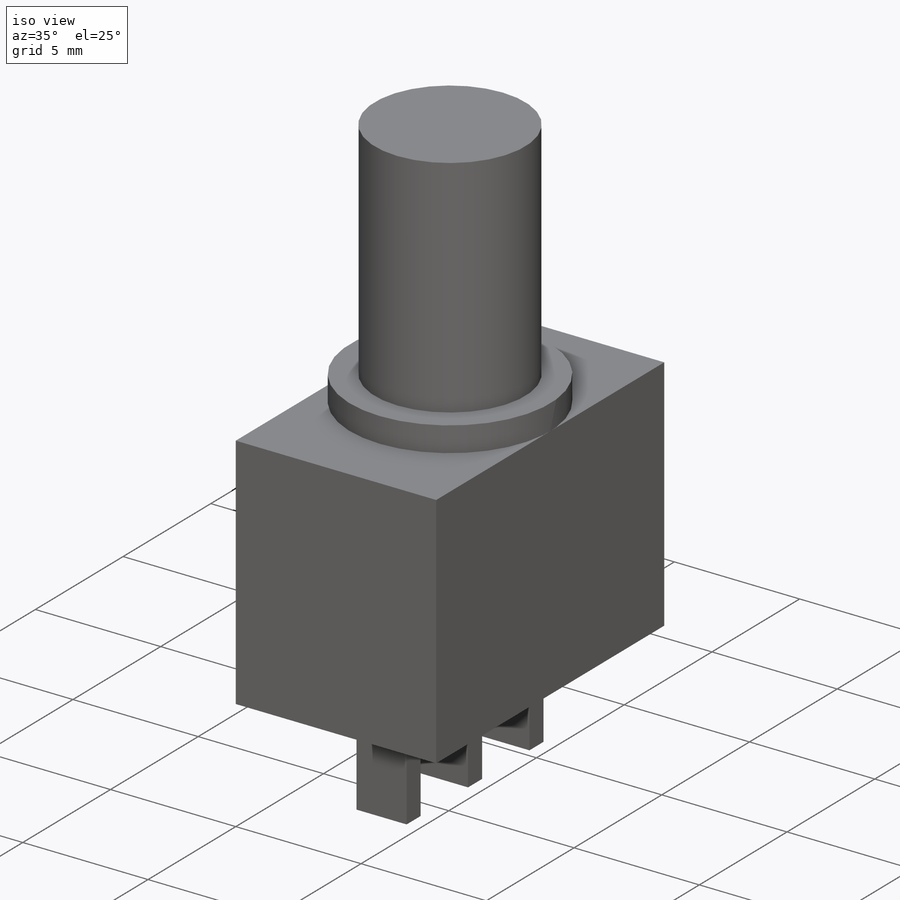
[diagram: iso view]
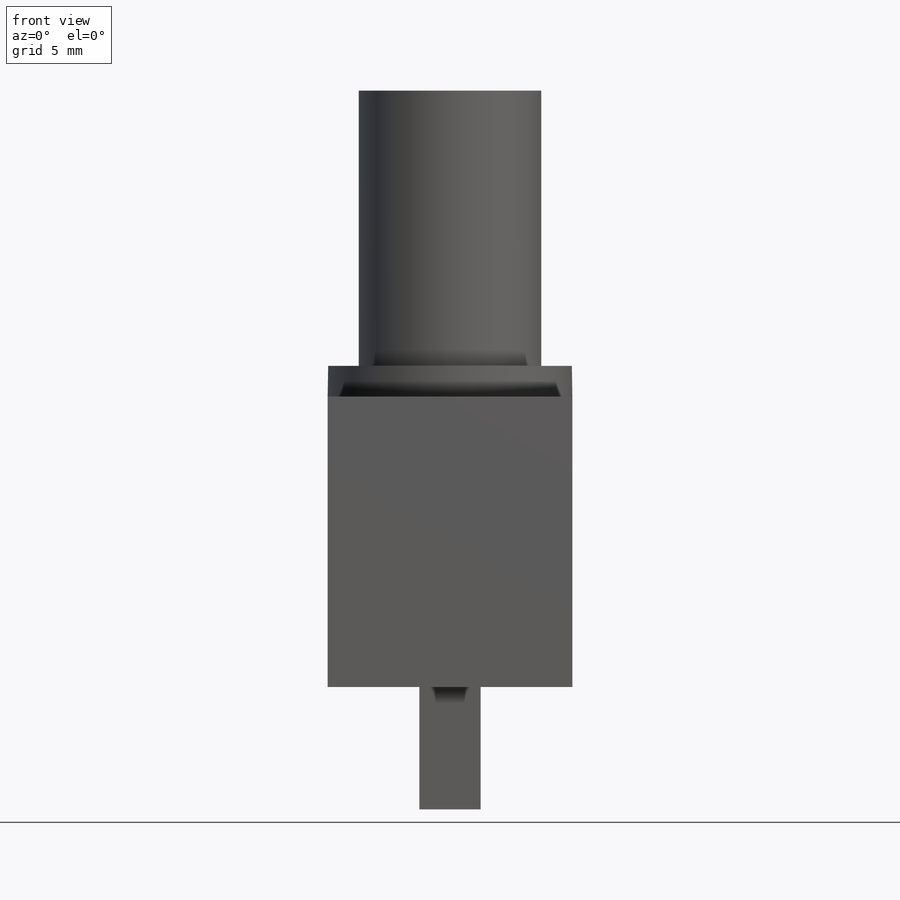
[diagram: front view]
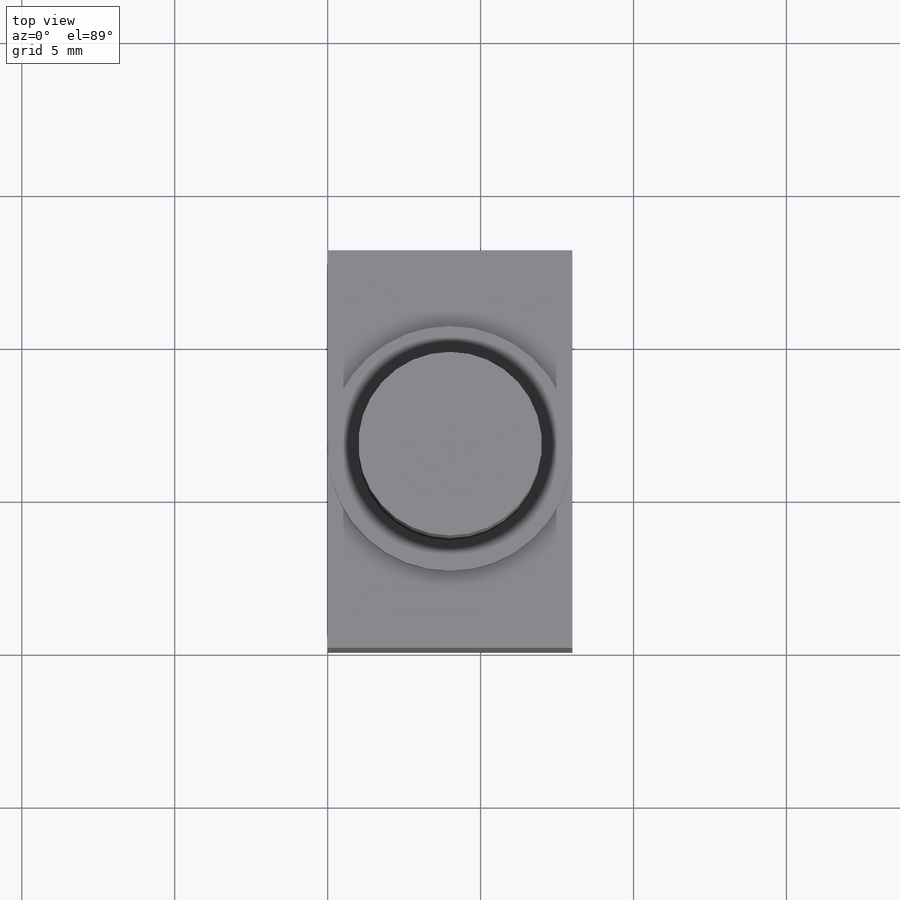
[diagram: top view]
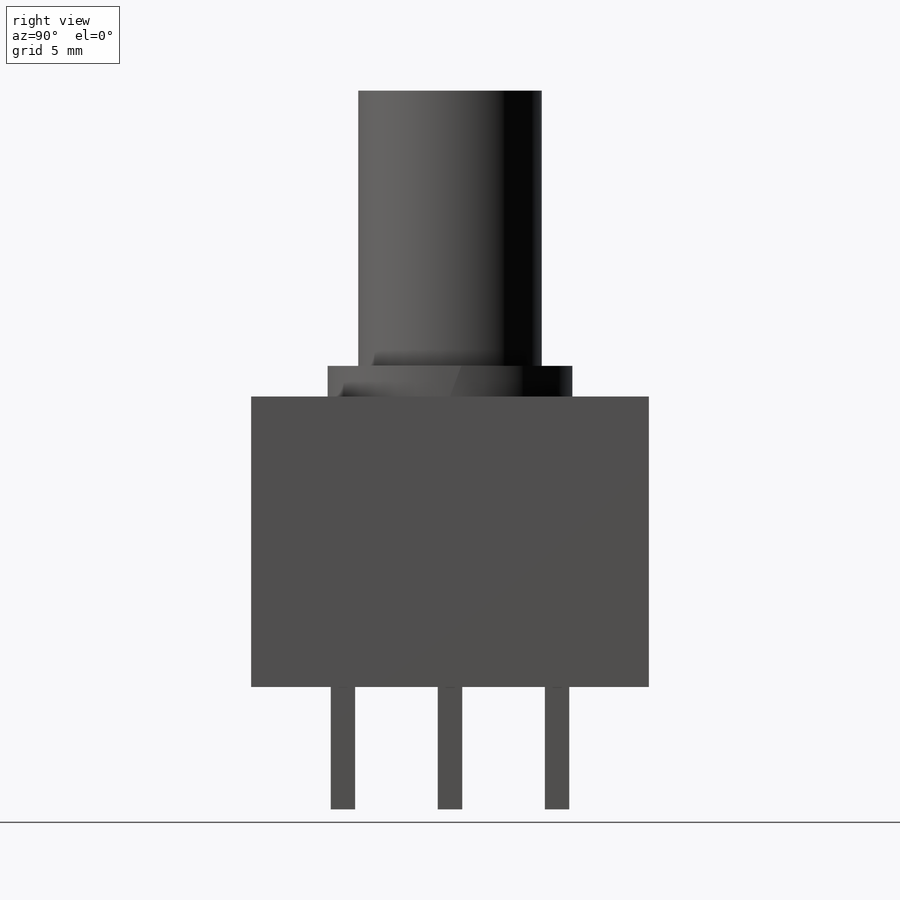
[diagram: right view]
SOLIDWORKS PART (.sldprt)
format: sldprt  version: not decoded by parser v0  size: 177,664 bytes
history: native  units: mm
features: sketch x4, extrude x4, plane x3, material x1 (+10 scaffold rows collapsed)
feature tree (22):
  scaffold x10  (default folders/planes/origin — collapsed)
  material  "Matériau <non spécifié>"
  plane  "Plan de face"
  plane  "Plan de dessus"
  plane  "Plan de droite"
  sketch  "Esquisse1"  dims[D1=9.5mm D2=13.0mm]
  extrude  "Boss.-Extru.1"  Depth=8mm
  sketch  "Esquisse2"  dims[D1=8.0mm D2=4.0mm D3=6.5mm D4=8.0mm]
  extrude  "Boss.-Extru.2"  Depth=1mm
  sketch  "Esquisse3"  dims[D1=6.0mm]
  extrude  "Boss.-Extru.3"  Depth=9mm
  sketch  "Esquisse4"  dims[D1=0.8mm D2=0.8mm D3=0.8mm D4=2.0mm D5=2.0mm D6=2.0mm D7=3.0mm D8=3.0mm D9=3.0mm D10=2.6mm D11=2.6mm D12=2.7mm D13=2.7mm]
  extrude  "Boss.-Extru.4"  Depth=4mm
decode coverage: 8 of 8 modeling features carry decoded parameters
note: suppression state not decoded; provenance and decode notes live in map.json
